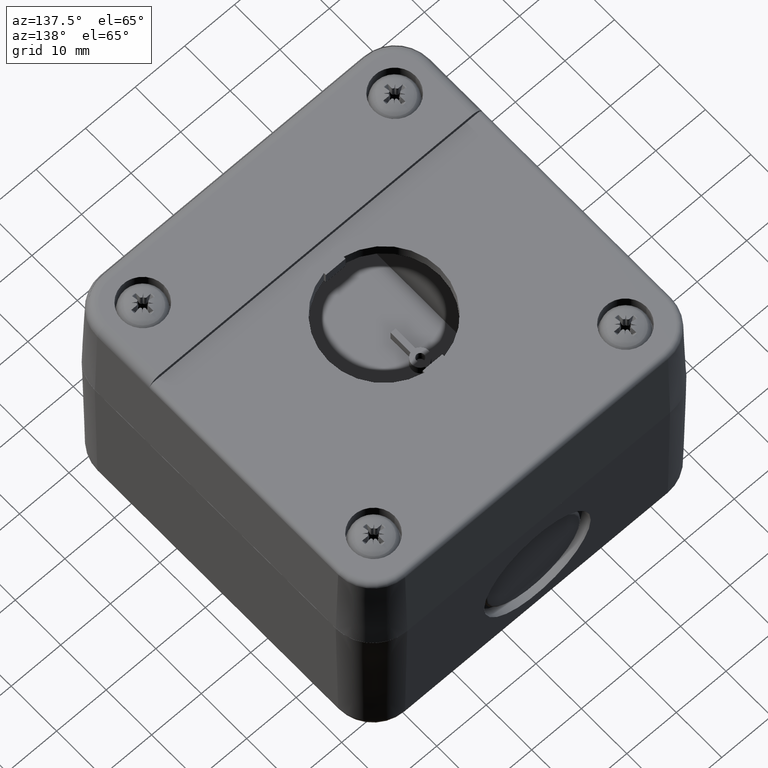
[diagram: clean part render]
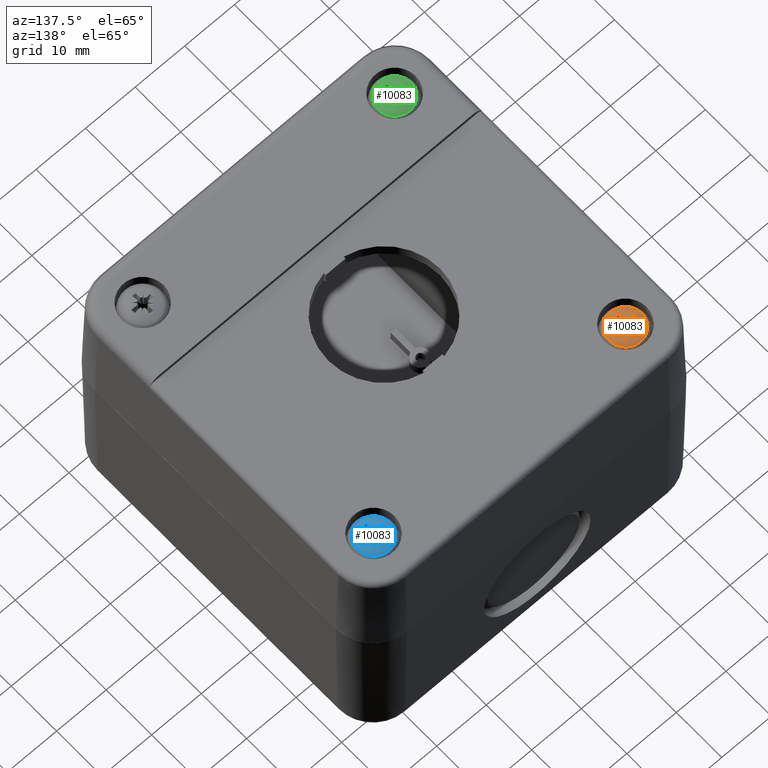
[diagram: same view with three faces highlighted in distinct colors, each labeled with its STEP entity id]
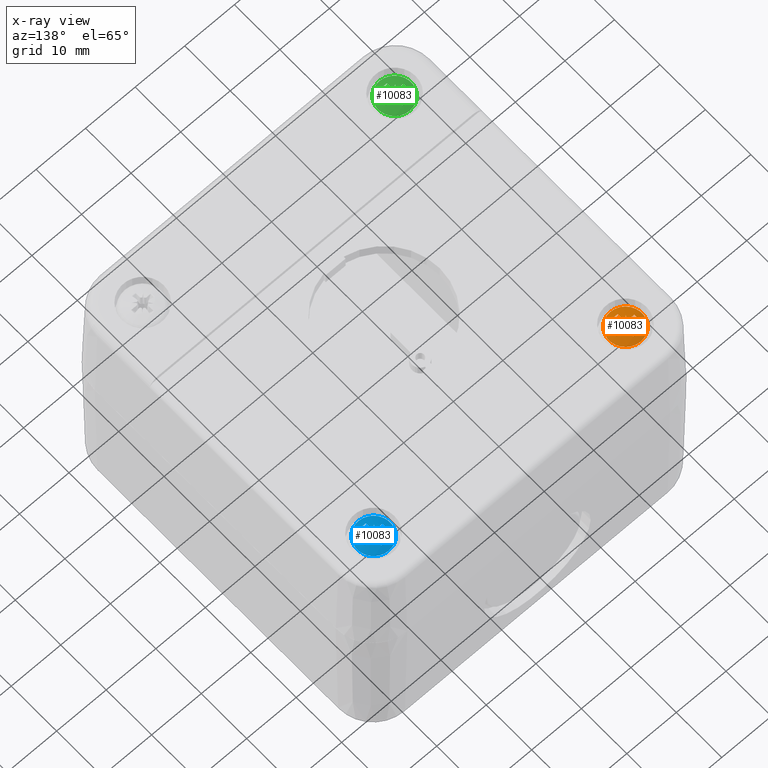
[diagram: x-ray of the same camera — body ghosted, the three highlighted faces saturated]
A machine part, auxiliary view with three faces highlighted in distinct colors.
The next image is the same camera in x-ray (body ghosted, the three faces saturated) — at least one of them is partly hidden behind the body in this view.
Their STEP definitions:

[orange] entity #10083 — the highlighted spherical surface has radius 6.5 mm.
#9370=CARTESIAN_POINT('',(-2.740264472333807,2.097928980903244,-0.381898155116653));
#9371=VERTEX_POINT('',#9370);
#9399=CARTESIAN_POINT('',(-2.740264472333807,2.097928980903246,0.381898155116641));
#9400=VERTEX_POINT('',#9399);
#9414=CARTESIAN_POINT('',(-2.740264472333807,-4.964762E-033,0.0));
#9415=DIRECTION('',(-1.0,0.0,0.0));
#9416=DIRECTION('',(0.0,1.0,0.0));
#9417=AXIS2_PLACEMENT_3D('',#9414,#9415,#9416);
#9418=CIRCLE('',#9417,2.132405263967247);
#9419=EDGE_CURVE('',#9400,#9371,#9418,.T.);
#9475=CARTESIAN_POINT('',(-2.740264472333807,-0.381898155116649,-2.097928980903244));
#9476=VERTEX_POINT('',#9475);
#9504=CARTESIAN_POINT('',(-2.740264472333807,0.381898155116649,-2.097928980903244));
#9505=VERTEX_POINT('',#9504);
#9519=CARTESIAN_POINT('',(-2.740264472333807,-4.964762E-033,0.0));
#9520=DIRECTION('',(-1.0,0.0,0.0));
#9521=DIRECTION('',(0.0,0.0,-1.0));
#9522=AXIS2_PLACEMENT_3D('',#9519,#9520,#9521);
#9523=CIRCLE('',#9522,2.132405263967247);
#9524=EDGE_CURVE('',#9505,#9476,#9523,.T.);
#9580=CARTESIAN_POINT('',(-2.740264472333807,-2.097928980903244,0.381898155116654));
#9581=VERTEX_POINT('',#9580);
#9609=CARTESIAN_POINT('',(-2.740264472333807,-2.097928980903244,-0.381898155116654));
#9610=VERTEX_POINT('',#9609);
#9624=CARTESIAN_POINT('',(-2.740264472333807,-4.964762E-033,0.0));
#9625=DIRECTION('',(-1.0,0.0,0.0));
#9626=DIRECTION('',(0.0,-1.0,0.0));
#9627=AXIS2_PLACEMENT_3D('',#9624,#9625,#9626);
#9628=CIRCLE('',#9627,2.132405263967247);
#9629=EDGE_CURVE('',#9610,#9581,#9628,.T.);
#9685=CARTESIAN_POINT('',(-2.740264472333807,0.381898155116649,2.097928980903244));
#9686=VERTEX_POINT('',#9685);
#9714=CARTESIAN_POINT('',(-2.740264472333807,-0.381898155116649,2.097928980903244));
#9715=VERTEX_POINT('',#9714);
#9729=CARTESIAN_POINT('',(-2.740264472333807,-4.964762E-033,0.0));
#9730=DIRECTION('',(-1.0,0.0,0.0));
#9731=DIRECTION('',(0.0,0.0,1.0));
#9732=AXIS2_PLACEMENT_3D('',#9729,#9730,#9731);
#9733=CIRCLE('',#9732,2.132405263967247);
#9734=EDGE_CURVE('',#9715,#9686,#9733,.T.);
#9790=CARTESIAN_POINT('',(-2.183742636930273,3.327434171328859,0.0));
#9791=VERTEX_POINT('',#9790);
#9792=CARTESIAN_POINT('',(-2.183742636930273,-6.405770E-033,0.0));
#9793=DIRECTION('',(1.0,0.0,0.0));
#9794=DIRECTION('',(0.0,-1.0,0.0));
#9795=AXIS2_PLACEMENT_3D('',#9792,#9793,#9794);
#9796=CIRCLE('',#9795,3.327434171328859);
#9797=EDGE_CURVE('',#9791,#9791,#9796,.T.);
#9813=CARTESIAN_POINT('',(3.400000000000001,2.905822E-033,0.0));
#9814=DIRECTION('',(0.0,0.0,1.0));
#9815=DIRECTION('',(1.0,0.0,0.0));
#9816=AXIS2_PLACEMENT_3D('',#9813,#9814,#9815);
#9817=SPHERICAL_SURFACE('',#9816,6.500000000000000);
#9818=CARTESIAN_POINT('',(-3.010679468079118,1.037261204626115,0.277989120158355));
#9819=VERTEX_POINT('',#9818);
#9820=CARTESIAN_POINT('',(3.364498488616870,0.048518764895126,-0.402873045988828));
#9821=DIRECTION('',(-0.087155742747658,0.119112928629935,-0.989048020441527));
#9822=DIRECTION('',(0.0,-0.992826023202183,-0.119567920666614));
#9823=AXIS2_PLACEMENT_3D('',#9820,#9821,#9822);
#9824=CIRCLE('',#9823,6.487224281690764);
#9825=EDGE_CURVE('',#9819,#9400,#9824,.T.);
#9826=ORIENTED_EDGE('',*,*,#9825,.F.);
#9827=CARTESIAN_POINT('',(-3.035815849595412,0.698160204518281,0.585531108426812));
#9828=VERTEX_POINT('',#9827);
#9829=CARTESIAN_POINT('',(-3.035815849593986,0.698160204522933,0.585531108426644));
#9830=CARTESIAN_POINT('',(-3.041048285518261,0.697706071094421,0.528560717466994));
#9831=CARTESIAN_POINT('',(-3.043961277870817,0.714742388245253,0.466989271457158));
#9832=CARTESIAN_POINT('',(-3.043452567975444,0.747144922975328,0.416765483602997));
#9833=CARTESIAN_POINT('',(-3.042928212863193,0.780543987727433,0.364997078550407));
#9834=CARTESIAN_POINT('',(-3.039219090583303,0.827318053658603,0.325394350588753));
#9835=CARTESIAN_POINT('',(-3.032533402503185,0.884247371927329,0.301032574517108));
#9836=CARTESIAN_POINT('',(-3.026743136403848,0.933552080385095,0.279933599450236));
#9837=CARTESIAN_POINT('',(-3.019255062838840,0.985721648384721,0.272537802283004));
#9838=CARTESIAN_POINT('',(-3.010679468079118,1.037261204626115,0.277989120158355));
#9839=B_SPLINE_CURVE_WITH_KNOTS('',3,(#9829,#9830,#9831,#9832,#9833,#9834,#9835,#9836,#9837,#9838),.UNSPECIFIED.,.F.,.U.,(4,3,3,4),(0.022629439956889,0.039685525400216,0.057266165522495,0.072492210064927),.UNSPECIFIED.);
#9840=EDGE_CURVE('',#9828,#9819,#9839,.T.);
#9841=ORIENTED_EDGE('',*,*,#9840,.F.);
#9842=CARTESIAN_POINT('',(-2.889326122708654,1.160684479566799,1.160684479566806));
#9843=VERTEX_POINT('',#9842);
#9844=CARTESIAN_POINT('',(3.230858224469190,-0.726027664307542,0.626933561900198));
#9845=DIRECTION('',(0.173648177666930,0.745371038273256,-0.643636796412699));
#9846=DIRECTION('',(0.0,-0.653565931466343,-0.756869587991572));
#9847=AXIS2_PLACEMENT_3D('',#9844,#9845,#9846);
#9848=CIRCLE('',#9847,6.426603239612161);
#9849=EDGE_CURVE('',#9828,#9843,#9848,.T.);
#9850=ORIENTED_EDGE('',*,*,#9849,.T.);
#9851=CARTESIAN_POINT('',(-3.035815851448311,0.585531098263068,0.698160201472788));
#9852=VERTEX_POINT('',#9851);
#9853=CARTESIAN_POINT('',(3.230858224469189,0.626933561900205,-0.726027664307540));
#9854=DIRECTION('',(0.173648177666930,-0.643636796412705,0.745371038273251));
#9855=DIRECTION('',(0.0,0.756869587991567,0.653565931466348));
#9856=AXIS2_PLACEMENT_3D('',#9853,#9854,#9855);
#9857=CIRCLE('',#9856,6.426603239612163);
#9858=EDGE_CURVE('',#9843,#9852,#9857,.T.);
#9859=ORIENTED_EDGE('',*,*,#9858,.T.);
#9860=CARTESIAN_POINT('',(-3.010679468079118,0.277989120158362,1.037261204626108));
#9861=VERTEX_POINT('',#9860);
#9862=CARTESIAN_POINT('',(-3.010679468079118,0.277989120158362,1.037261204626108));
#9863=CARTESIAN_POINT('',(-3.022007619513351,0.270788062256447,0.969178708389473));
#9864=CARTESIAN_POINT('',(-3.032570623285665,0.289734688212426,0.890579692116912));
#9865=CARTESIAN_POINT('',(-3.038088171152974,0.329625598365260,0.832086332878081));
#9866=CARTESIAN_POINT('',(-3.043024119821022,0.365311647597867,0.779758700102090));
#9867=CARTESIAN_POINT('',(-3.044737404278167,0.419395741705454,0.737382176698533));
#9868=CARTESIAN_POINT('',(-3.042556473023540,0.480946385549282,0.715651218212857));
#9869=CARTESIAN_POINT('',(-3.041337828882706,0.515339185104863,0.703508558889182));
#9870=CARTESIAN_POINT('',(-3.039108349183298,0.549682604545028,0.697874443176943));
#9871=CARTESIAN_POINT('',(-3.035815850537316,0.585531098155737,0.698160204441053));
#9872=B_SPLINE_CURVE_WITH_KNOTS('',3,(#9862,#9863,#9864,#9865,#9866,#9867,#9868,#9869,#9870,#9871),.UNSPECIFIED.,.F.,.U.,(4,3,3,4),(0.0,0.020817943436544,0.039441488288037,0.049847810709570),.UNSPECIFIED.);
#9873=EDGE_CURVE('',#9861,#9852,#9872,.T.);
#9874=ORIENTED_EDGE('',*,*,#9873,.F.);
#9875=CARTESIAN_POINT('',(3.364498488616871,-0.402873045988821,0.048518764895125));
#9876=DIRECTION('',(-0.087155742747658,-0.989048020441528,0.119112928629935));
#9877=DIRECTION('',(0.0,0.119567920666614,0.992826023202183));
#9878=AXIS2_PLACEMENT_3D('',#9875,#9876,#9877);
#9879=CIRCLE('',#9878,6.487224281690764);
#9880=EDGE_CURVE('',#9686,#9861,#9879,.T.);
#9881=ORIENTED_EDGE('',*,*,#9880,.F.);
#9882=ORIENTED_EDGE('',*,*,#9734,.F.);
#9883=CARTESIAN_POINT('',(-3.010679468079118,-0.277989120158362,1.037261204626108));
#9884=VERTEX_POINT('',#9883);
#9885=CARTESIAN_POINT('',(3.364498488616871,0.402873045988821,0.048518764895125));
#9886=DIRECTION('',(-0.087155742747658,0.989048020441528,0.119112928629935));
#9887=DIRECTION('',(0.0,0.119567920666614,-0.992826023202183));
#9888=AXIS2_PLACEMENT_3D('',#9885,#9886,#9887);
#9889=CIRCLE('',#9888,6.487224281690764);
#9890=EDGE_CURVE('',#9884,#9715,#9889,.T.);
#9891=ORIENTED_EDGE('',*,*,#9890,.F.);
#9892=CARTESIAN_POINT('',(-3.035815849594092,-0.585531108434057,0.698160204520450));
#9893=VERTEX_POINT('',#9892);
#9894=CARTESIAN_POINT('',(-3.035815849593314,-0.585531108433966,0.698160204522984));
#9895=CARTESIAN_POINT('',(-3.041020000111173,-0.528868686974056,0.697708526039322));
#9896=CARTESIAN_POINT('',(-3.043937330697067,-0.467531693559307,0.714581207607330));
#9897=CARTESIAN_POINT('',(-3.043459287925275,-0.417448635629941,0.746705458303476));
#9898=CARTESIAN_POINT('',(-3.042962619367630,-0.365414211908990,0.780081353098054));
#9899=CARTESIAN_POINT('',(-3.039257548525046,-0.325593896696212,0.826955961902831));
#9900=CARTESIAN_POINT('',(-3.032555218392210,-0.301112165263332,0.884061551174787));
#9901=CARTESIAN_POINT('',(-3.026762777964892,-0.279954005627508,0.933414644407852));
#9902=CARTESIAN_POINT('',(-3.019265837620008,-0.272530952990475,0.985656891658732));
#9903=CARTESIAN_POINT('',(-3.010679468079118,-0.277989120158362,1.037261204626108));
#9904=B_SPLINE_CURVE_WITH_KNOTS('',3,(#9894,#9895,#9896,#9897,#9898,#9899,#9900,#9901,#9902,#9903),.UNSPECIFIED.,.F.,.U.,(4,3,3,4),(0.022628689883696,0.039607089451594,0.057247011488016,0.072492186749959),.UNSPECIFIED.);
#9905=EDGE_CURVE('',#9893,#9884,#9904,.T.);
#9906=ORIENTED_EDGE('',*,*,#9905,.F.);
#9907=CARTESIAN_POINT('',(-2.889326122708666,-1.160684479566765,1.160684479566779));
#9908=VERTEX_POINT('',#9907);
#9909=CARTESIAN_POINT('',(3.230858224469189,-0.626933561900205,-0.726027664307540));
#9910=DIRECTION('',(0.173648177666930,0.643636796412705,0.745371038273251));
#9911=DIRECTION('',(0.0,0.756869587991567,-0.653565931466348));
#9912=AXIS2_PLACEMENT_3D('',#9909,#9910,#9911);
#9913=CIRCLE('',#9912,6.426603239612163);
#9914=EDGE_CURVE('',#9893,#9908,#9913,.T.);
#9915=ORIENTED_EDGE('',*,*,#9914,.T.);
#9916=CARTESIAN_POINT('',(-3.035815851448307,-0.698160201472795,0.585531098263103));
#9917=VERTEX_POINT('',#9916);
#9918=CARTESIAN_POINT('',(3.230858224469187,0.726027664307552,0.626933561900211));
#9919=DIRECTION('',(0.173648177666930,-0.745371038273254,-0.643636796412702));
#9920=DIRECTION('',(0.0,-0.653565931466345,0.756869587991570));
#9921=AXIS2_PLACEMENT_3D('',#9918,#9919,#9920);
#9922=CIRCLE('',#9921,6.426603239612160);
#9923=EDGE_CURVE('',#9908,#9917,#9922,.T.);
#9924=ORIENTED_EDGE('',*,*,#9923,.T.);
#9925=CARTESIAN_POINT('',(-3.010679468079117,-1.037261204626115,0.277989120158368));
#9926=VERTEX_POINT('',#9925);
#9927=CARTESIAN_POINT('',(-3.010679468079117,-1.037261204626116,0.277989120158355));
#9928=CARTESIAN_POINT('',(-3.022007619513351,-0.969178708389474,0.270788062256439));
#9929=CARTESIAN_POINT('',(-3.032570623285664,-0.890579692116914,0.289734688212420));
#9930=CARTESIAN_POINT('',(-3.038088171152974,-0.832086332878082,0.329625598365256));
#9931=CARTESIAN_POINT('',(-3.043024119821021,-0.779758700102097,0.365311647597862));
#9932=CARTESIAN_POINT('',(-3.044737404278166,-0.737382176698543,0.419395741705444));
#9933=CARTESIAN_POINT('',(-3.042556473023540,-0.715651218212867,0.480946385549266));
#9934=CARTESIAN_POINT('',(-3.041337828882706,-0.703508558889185,0.515339185104863));
#9935=CARTESIAN_POINT('',(-3.039108349183295,-0.697874443176945,0.549682604545045));
#9936=CARTESIAN_POINT('',(-3.035815850537312,-0.698160204441060,0.585531098155772));
#9937=B_SPLINE_CURVE_WITH_KNOTS('',3,(#9927,#9928,#9929,#9930,#9931,#9932,#9933,#9934,#9935,#9936),.UNSPECIFIED.,.F.,.U.,(4,3,3,4),(0.0,0.020817943436545,0.039441488288037,0.049847810709574),.UNSPECIFIED.);
#9938=EDGE_CURVE('',#9926,#9917,#9937,.T.);
#9939=ORIENTED_EDGE('',*,*,#9938,.F.);
#9940=CARTESIAN_POINT('',(3.364498488616871,-0.048518764895124,-0.402873045988815));
#9941=DIRECTION('',(-0.087155742747658,-0.119112928629935,-0.989048020441527));
#9942=DIRECTION('',(0.0,-0.992826023202183,0.119567920666614));
#9943=AXIS2_PLACEMENT_3D('',#9940,#9941,#9942);
#9944=CIRCLE('',#9943,6.487224281690765);
#9945=EDGE_CURVE('',#9581,#9926,#9944,.T.);
#9946=ORIENTED_EDGE('',*,*,#9945,.F.);
#9947=ORIENTED_EDGE('',*,*,#9629,.F.);
#9948=CARTESIAN_POINT('',(-3.010679468079117,-1.037261204626115,-0.277989120158368));
#9949=VERTEX_POINT('',#9948);
#9950=CARTESIAN_POINT('',(3.364498488616871,-0.048518764895124,0.402873045988815));
#9951=DIRECTION('',(-0.087155742747658,-0.119112928629935,0.989048020441527));
#9952=DIRECTION('',(0.0,0.992826023202183,0.119567920666614));
#9953=AXIS2_PLACEMENT_3D('',#9950,#9951,#9952);
#9954=CIRCLE('',#9953,6.487224281690765);
#9955=EDGE_CURVE('',#9949,#9610,#9954,.T.);
#9956=ORIENTED_EDGE('',*,*,#9955,.F.);
#9957=CARTESIAN_POINT('',(-3.035815849595412,-0.698160204518281,-0.585531108426827));
#9958=VERTEX_POINT('',#9957);
#9959=CARTESIAN_POINT('',(-3.035815849593984,-0.698160204522933,-0.585531108426659));
#9960=CARTESIAN_POINT('',(-3.041048285518225,-0.697706071094424,-0.528560717467378));
#9961=CARTESIAN_POINT('',(-3.043961277870781,-0.714742388245004,-0.466989271457977));
#9962=CARTESIAN_POINT('',(-3.043452567975453,-0.747144922974693,-0.416765483603994));
#9963=CARTESIAN_POINT('',(-3.042928212863242,-0.780543987726763,-0.364997078551025));
#9964=CARTESIAN_POINT('',(-3.039219090583361,-0.827318053658044,-0.325394350589086));
#9965=CARTESIAN_POINT('',(-3.032533402503224,-0.884247371926989,-0.301032574517266));
#9966=CARTESIAN_POINT('',(-3.026743136403883,-0.933552080384844,-0.279933599450286));
#9967=CARTESIAN_POINT('',(-3.019255062838859,-0.985721648384602,-0.272537802283005));
#9968=CARTESIAN_POINT('',(-3.010679468079117,-1.037261204626115,-0.277989120158368));
#9969=B_SPLINE_CURVE_WITH_KNOTS('',3,(#9959,#9960,#9961,#9962,#9963,#9964,#9965,#9966,#9967,#9968),.UNSPECIFIED.,.F.,.U.,(4,3,3,4),(0.022629439956888,0.039685525400103,0.057266165522459,0.072492210064926),.UNSPECIFIED.);
#9970=EDGE_CURVE('',#9958,#9949,#9969,.T.);
#9971=ORIENTED_EDGE('',*,*,#9970,.F.);
#9972=CARTESIAN_POINT('',(-2.889326122708658,-1.160684479566787,-1.160684479566796));
#9973=VERTEX_POINT('',#9972);
#9974=CARTESIAN_POINT('',(3.230858224469187,0.726027664307549,-0.626933561900214));
#9975=DIRECTION('',(0.173648177666930,-0.745371038273251,0.643636796412705));
#9976=DIRECTION('',(0.0,0.653565931466348,0.756869587991567));
#9977=AXIS2_PLACEMENT_3D('',#9974,#9975,#9976);
#9978=CIRCLE('',#9977,6.426603239612161);
#9979=EDGE_CURVE('',#9958,#9973,#9978,.T.);
#9980=ORIENTED_EDGE('',*,*,#9979,.T.);
#9981=CARTESIAN_POINT('',(-3.035815851448311,-0.585531098263068,-0.698160201472788));
#9982=VERTEX_POINT('',#9981);
#9983=CARTESIAN_POINT('',(3.230858224469189,-0.626933561900205,0.726027664307540));
#9984=DIRECTION('',(0.173648177666930,0.643636796412705,-0.745371038273251));
#9985=DIRECTION('',(0.0,-0.756869587991567,-0.653565931466348));
#9986=AXIS2_PLACEMENT_3D('',#9983,#9984,#9985);
#9987=CIRCLE('',#9986,6.426603239612163);
#9988=EDGE_CURVE('',#9973,#9982,#9987,.T.);
#9989=ORIENTED_EDGE('',*,*,#9988,.T.);
#9990=CARTESIAN_POINT('',(-3.010679468079118,-0.277989120158362,-1.037261204626108));
#9991=VERTEX_POINT('',#9990);
#9992=CARTESIAN_POINT('',(-3.010679468079118,-0.277989120158362,-1.037261204626108));
#9993=CARTESIAN_POINT('',(-3.022007619513351,-0.270788062256447,-0.969178708389472));
#9994=CARTESIAN_POINT('',(-3.032570623285665,-0.289734688212427,-0.890579692116911));
#9995=CARTESIAN_POINT('',(-3.038088171152974,-0.329625598365261,-0.832086332878080));
#9996=CARTESIAN_POINT('',(-3.043024119821022,-0.365311647597867,-0.779758700102092));
#9997=CARTESIAN_POINT('',(-3.044737404278167,-0.419395741705450,-0.737382176698537));
#9998=CARTESIAN_POINT('',(-3.042556473023541,-0.480946385549274,-0.715651218212860));
#9999=CARTESIAN_POINT('',(-3.041337828882706,-0.515339185104858,-0.703508558889183));
#10000=CARTESIAN_POINT('',(-3.039108349183298,-0.549682604545025,-0.697874443176943));
#10001=CARTESIAN_POINT('',(-3.035815850537316,-0.585531098155737,-0.698160204441053));
#10002=B_SPLINE_CURVE_WITH_KNOTS('',3,(#9992,#9993,#9994,#9995,#9996,#9997,#9998,#9999,#10000,#10001),.UNSPECIFIED.,.F.,.U.,(4,3,3,4),(0.0,0.020817943436545,0.039441488288037,0.049847810709570),.UNSPECIFIED.);
#10003=EDGE_CURVE('',#9991,#9982,#10002,.T.);
#10004=ORIENTED_EDGE('',*,*,#10003,.F.);
#10005=CARTESIAN_POINT('',(3.364498488616871,0.402873045988821,-0.048518764895125));
#10006=DIRECTION('',(-0.087155742747658,0.989048020441528,-0.119112928629935));
#10007=DIRECTION('',(0.0,-0.119567920666614,-0.992826023202183));
#10008=AXIS2_PLACEMENT_3D('',#10005,#10006,#10007);
#10009=CIRCLE('',#10008,6.487224281690764);
#10010=EDGE_CURVE('',#9476,#9991,#10009,.T.);
#10011=ORIENTED_EDGE('',*,*,#10010,.F.);
#10012=ORIENTED_EDGE('',*,*,#9524,.F.);
#10013=CARTESIAN_POINT('',(-3.010679468079118,0.277989120158362,-1.037261204626108));
#10014=VERTEX_POINT('',#10013);
#10015=CARTESIAN_POINT('',(3.364498488616871,-0.402873045988821,-0.048518764895125));
#10016=DIRECTION('',(-0.087155742747658,-0.989048020441528,-0.119112928629935));
#10017=DIRECTION('',(0.0,-0.119567920666614,0.992826023202183));
#10018=AXIS2_PLACEMENT_3D('',#10015,#10016,#10017);
#10019=CIRCLE('',#10018,6.487224281690764);
#10020=EDGE_CURVE('',#10014,#9505,#10019,.T.);
#10021=ORIENTED_EDGE('',*,*,#10020,.F.);
#10022=CARTESIAN_POINT('',(-3.035815849594092,0.585531108434057,-0.698160204520450));
#10023=VERTEX_POINT('',#10022);
#10024=CARTESIAN_POINT('',(-3.035815849593314,0.585531108433966,-0.698160204522984));
#10025=CARTESIAN_POINT('',(-3.041020000111195,0.528868686973814,-0.697708526039320));
#10026=CARTESIAN_POINT('',(-3.043937330697089,0.467531693558786,-0.714581207607489));
#10027=CARTESIAN_POINT('',(-3.043459287925268,0.417448635629303,-0.746705458303885));
#10028=CARTESIAN_POINT('',(-3.042962619367598,0.365414211908607,-0.780081353098481));
#10029=CARTESIAN_POINT('',(-3.039257548525010,0.325593896696021,-0.826955961903173));
#10030=CARTESIAN_POINT('',(-3.032555218392188,0.301112165263252,-0.884061551174973));
#10031=CARTESIAN_POINT('',(-3.026762777964872,0.279954005627488,-0.933414644407990));
#10032=CARTESIAN_POINT('',(-3.019265837619997,0.272530952990482,-0.985656891658797));
#10033=CARTESIAN_POINT('',(-3.010679468079118,0.277989120158362,-1.037261204626108));
#10034=B_SPLINE_CURVE_WITH_KNOTS('',3,(#10024,#10025,#10026,#10027,#10028,#10029,#10030,#10031,#10032,#10033),.UNSPECIFIED.,.F.,.U.,(4,3,3,4),(0.022628689883696,0.039607089451666,0.057247011488035,0.072492186749959),.UNSPECIFIED.);
#10035=EDGE_CURVE('',#10023,#10014,#10034,.T.);
#10036=ORIENTED_EDGE('',*,*,#10035,.F.);
#10037=CARTESIAN_POINT('',(-2.889326122708656,1.160684479566794,-1.160684479566803));
#10038=VERTEX_POINT('',#10037);
#10039=CARTESIAN_POINT('',(3.230858224469189,0.626933561900205,0.726027664307540));
#10040=DIRECTION('',(0.173648177666930,-0.643636796412705,-0.745371038273251));
#10041=DIRECTION('',(0.0,-0.756869587991567,0.653565931466348));
#10042=AXIS2_PLACEMENT_3D('',#10039,#10040,#10041);
#10043=CIRCLE('',#10042,6.426603239612163);
#10044=EDGE_CURVE('',#10023,#10038,#10043,.T.);
#10045=ORIENTED_EDGE('',*,*,#10044,.T.);
#10046=CARTESIAN_POINT('',(-3.035815851448307,0.698160201472795,-0.585531098263094));
#10047=VERTEX_POINT('',#10046);
#10048=CARTESIAN_POINT('',(3.230858224469188,-0.726027664307548,-0.626933561900213));
#10049=DIRECTION('',(0.173648177666930,0.745371038273251,0.643636796412705));
#10050=DIRECTION('',(0.0,0.653565931466348,-0.756869587991567));
#10051=AXIS2_PLACEMENT_3D('',#10048,#10049,#10050);
#10052=CIRCLE('',#10051,6.426603239612161);
#10053=EDGE_CURVE('',#10038,#10047,#10052,.T.);
#10054=ORIENTED_EDGE('',*,*,#10053,.T.);
#10055=CARTESIAN_POINT('',(-3.010679468079118,1.037261204626115,-0.277989120158368));
#10056=VERTEX_POINT('',#10055);
#10057=CARTESIAN_POINT('',(-3.010679468079117,1.037261204626116,-0.277989120158355));
#10058=CARTESIAN_POINT('',(-3.022007619513351,0.969178708389474,-0.270788062256439));
#10059=CARTESIAN_POINT('',(-3.032570623285664,0.890579692116912,-0.289734688212421));
#10060=CARTESIAN_POINT('',(-3.038088171152974,0.832086332878080,-0.329625598365258));
#10061=CARTESIAN_POINT('',(-3.043024119821020,0.779758700102098,-0.365311647597862));
#10062=CARTESIAN_POINT('',(-3.044737404278167,0.737382176698546,-0.419395741705441));
#10063=CARTESIAN_POINT('',(-3.042556473023541,0.715651218212870,-0.480946385549260));
#10064=CARTESIAN_POINT('',(-3.041337828882706,0.703508558889187,-0.515339185104857));
#10065=CARTESIAN_POINT('',(-3.039108349183297,0.697874443176946,-0.549682604545037));
#10066=CARTESIAN_POINT('',(-3.035815850537313,0.698160204441060,-0.585531098155763));
#10067=B_SPLINE_CURVE_WITH_KNOTS('',3,(#10057,#10058,#10059,#10060,#10061,#10062,#10063,#10064,#10065,#10066),.UNSPECIFIED.,.F.,.U.,(4,3,3,4),(0.0,0.020817943436546,0.039441488288036,0.049847810709573),.UNSPECIFIED.);
#10068=EDGE_CURVE('',#10056,#10047,#10067,.T.);
#10069=ORIENTED_EDGE('',*,*,#10068,.F.);
#10070=CARTESIAN_POINT('',(3.364498488616871,0.048518764895124,0.402873045988815));
#10071=DIRECTION('',(-0.087155742747658,0.119112928629934,0.989048020441528));
#10072=DIRECTION('',(0.0,0.992826023202183,-0.119567920666613));
#10073=AXIS2_PLACEMENT_3D('',#10070,#10071,#10072);
#10074=CIRCLE('',#10073,6.487224281690766);
#10075=EDGE_CURVE('',#9371,#10056,#10074,.T.);
#10076=ORIENTED_EDGE('',*,*,#10075,.F.);
#10077=ORIENTED_EDGE('',*,*,#9419,.F.);
#10078=EDGE_LOOP('',(#9826,#9841,#9850,#9859,#9874,#9881,#9882,#9891,#9906,#9915,#9924,#9939,#9946,#9947,#9956,#9971,#9980,#9989,#10004,#10011,#10012,#10021,#10036,#10045,#10054,#10069,#10076,#10077));
#10079=FACE_OUTER_BOUND('',#10078,.T.);
#10080=ORIENTED_EDGE('',*,*,#9797,.F.);
#10081=EDGE_LOOP('',(#10080));
#10082=FACE_BOUND('',#10081,.T.);
#10083=ADVANCED_FACE('',(#10079,#10082),#9817,.T.);

[blue] entity #10083 — the highlighted spherical surface has radius 6.5 mm.
#9370=CARTESIAN_POINT('',(-2.740264472333807,2.097928980903244,-0.381898155116653));
#9371=VERTEX_POINT('',#9370);
#9399=CARTESIAN_POINT('',(-2.740264472333807,2.097928980903246,0.381898155116641));
#9400=VERTEX_POINT('',#9399);
#9414=CARTESIAN_POINT('',(-2.740264472333807,-4.964762E-033,0.0));
#9415=DIRECTION('',(-1.0,0.0,0.0));
#9416=DIRECTION('',(0.0,1.0,0.0));
#9417=AXIS2_PLACEMENT_3D('',#9414,#9415,#9416);
#9418=CIRCLE('',#9417,2.132405263967247);
#9419=EDGE_CURVE('',#9400,#9371,#9418,.T.);
#9475=CARTESIAN_POINT('',(-2.740264472333807,-0.381898155116649,-2.097928980903244));
#9476=VERTEX_POINT('',#9475);
#9504=CARTESIAN_POINT('',(-2.740264472333807,0.381898155116649,-2.097928980903244));
#9505=VERTEX_POINT('',#9504);
#9519=CARTESIAN_POINT('',(-2.740264472333807,-4.964762E-033,0.0));
#9520=DIRECTION('',(-1.0,0.0,0.0));
#9521=DIRECTION('',(0.0,0.0,-1.0));
#9522=AXIS2_PLACEMENT_3D('',#9519,#9520,#9521);
#9523=CIRCLE('',#9522,2.132405263967247);
#9524=EDGE_CURVE('',#9505,#9476,#9523,.T.);
#9580=CARTESIAN_POINT('',(-2.740264472333807,-2.097928980903244,0.381898155116654));
#9581=VERTEX_POINT('',#9580);
#9609=CARTESIAN_POINT('',(-2.740264472333807,-2.097928980903244,-0.381898155116654));
#9610=VERTEX_POINT('',#9609);
#9624=CARTESIAN_POINT('',(-2.740264472333807,-4.964762E-033,0.0));
#9625=DIRECTION('',(-1.0,0.0,0.0));
#9626=DIRECTION('',(0.0,-1.0,0.0));
#9627=AXIS2_PLACEMENT_3D('',#9624,#9625,#9626);
#9628=CIRCLE('',#9627,2.132405263967247);
#9629=EDGE_CURVE('',#9610,#9581,#9628,.T.);
#9685=CARTESIAN_POINT('',(-2.740264472333807,0.381898155116649,2.097928980903244));
#9686=VERTEX_POINT('',#9685);
#9714=CARTESIAN_POINT('',(-2.740264472333807,-0.381898155116649,2.097928980903244));
#9715=VERTEX_POINT('',#9714);
#9729=CARTESIAN_POINT('',(-2.740264472333807,-4.964762E-033,0.0));
#9730=DIRECTION('',(-1.0,0.0,0.0));
#9731=DIRECTION('',(0.0,0.0,1.0));
#9732=AXIS2_PLACEMENT_3D('',#9729,#9730,#9731);
#9733=CIRCLE('',#9732,2.132405263967247);
#9734=EDGE_CURVE('',#9715,#9686,#9733,.T.);
#9790=CARTESIAN_POINT('',(-2.183742636930273,3.327434171328859,0.0));
#9791=VERTEX_POINT('',#9790);
#9792=CARTESIAN_POINT('',(-2.183742636930273,-6.405770E-033,0.0));
#9793=DIRECTION('',(1.0,0.0,0.0));
#9794=DIRECTION('',(0.0,-1.0,0.0));
#9795=AXIS2_PLACEMENT_3D('',#9792,#9793,#9794);
#9796=CIRCLE('',#9795,3.327434171328859);
#9797=EDGE_CURVE('',#9791,#9791,#9796,.T.);
#9813=CARTESIAN_POINT('',(3.400000000000001,2.905822E-033,0.0));
#9814=DIRECTION('',(0.0,0.0,1.0));
#9815=DIRECTION('',(1.0,0.0,0.0));
#9816=AXIS2_PLACEMENT_3D('',#9813,#9814,#9815);
#9817=SPHERICAL_SURFACE('',#9816,6.500000000000000);
#9818=CARTESIAN_POINT('',(-3.010679468079118,1.037261204626115,0.277989120158355));
#9819=VERTEX_POINT('',#9818);
#9820=CARTESIAN_POINT('',(3.364498488616870,0.048518764895126,-0.402873045988828));
#9821=DIRECTION('',(-0.087155742747658,0.119112928629935,-0.989048020441527));
#9822=DIRECTION('',(0.0,-0.992826023202183,-0.119567920666614));
#9823=AXIS2_PLACEMENT_3D('',#9820,#9821,#9822);
#9824=CIRCLE('',#9823,6.487224281690764);
#9825=EDGE_CURVE('',#9819,#9400,#9824,.T.);
#9826=ORIENTED_EDGE('',*,*,#9825,.F.);
#9827=CARTESIAN_POINT('',(-3.035815849595412,0.698160204518281,0.585531108426812));
#9828=VERTEX_POINT('',#9827);
#9829=CARTESIAN_POINT('',(-3.035815849593986,0.698160204522933,0.585531108426644));
#9830=CARTESIAN_POINT('',(-3.041048285518261,0.697706071094421,0.528560717466994));
#9831=CARTESIAN_POINT('',(-3.043961277870817,0.714742388245253,0.466989271457158));
#9832=CARTESIAN_POINT('',(-3.043452567975444,0.747144922975328,0.416765483602997));
#9833=CARTESIAN_POINT('',(-3.042928212863193,0.780543987727433,0.364997078550407));
#9834=CARTESIAN_POINT('',(-3.039219090583303,0.827318053658603,0.325394350588753));
#9835=CARTESIAN_POINT('',(-3.032533402503185,0.884247371927329,0.301032574517108));
#9836=CARTESIAN_POINT('',(-3.026743136403848,0.933552080385095,0.279933599450236));
#9837=CARTESIAN_POINT('',(-3.019255062838840,0.985721648384721,0.272537802283004));
#9838=CARTESIAN_POINT('',(-3.010679468079118,1.037261204626115,0.277989120158355));
#9839=B_SPLINE_CURVE_WITH_KNOTS('',3,(#9829,#9830,#9831,#9832,#9833,#9834,#9835,#9836,#9837,#9838),.UNSPECIFIED.,.F.,.U.,(4,3,3,4),(0.022629439956889,0.039685525400216,0.057266165522495,0.072492210064927),.UNSPECIFIED.);
#9840=EDGE_CURVE('',#9828,#9819,#9839,.T.);
#9841=ORIENTED_EDGE('',*,*,#9840,.F.);
#9842=CARTESIAN_POINT('',(-2.889326122708654,1.160684479566799,1.160684479566806));
#9843=VERTEX_POINT('',#9842);
#9844=CARTESIAN_POINT('',(3.230858224469190,-0.726027664307542,0.626933561900198));
#9845=DIRECTION('',(0.173648177666930,0.745371038273256,-0.643636796412699));
#9846=DIRECTION('',(0.0,-0.653565931466343,-0.756869587991572));
#9847=AXIS2_PLACEMENT_3D('',#9844,#9845,#9846);
#9848=CIRCLE('',#9847,6.426603239612161);
#9849=EDGE_CURVE('',#9828,#9843,#9848,.T.);
#9850=ORIENTED_EDGE('',*,*,#9849,.T.);
#9851=CARTESIAN_POINT('',(-3.035815851448311,0.585531098263068,0.698160201472788));
#9852=VERTEX_POINT('',#9851);
#9853=CARTESIAN_POINT('',(3.230858224469189,0.626933561900205,-0.726027664307540));
#9854=DIRECTION('',(0.173648177666930,-0.643636796412705,0.745371038273251));
#9855=DIRECTION('',(0.0,0.756869587991567,0.653565931466348));
#9856=AXIS2_PLACEMENT_3D('',#9853,#9854,#9855);
#9857=CIRCLE('',#9856,6.426603239612163);
#9858=EDGE_CURVE('',#9843,#9852,#9857,.T.);
#9859=ORIENTED_EDGE('',*,*,#9858,.T.);
#9860=CARTESIAN_POINT('',(-3.010679468079118,0.277989120158362,1.037261204626108));
#9861=VERTEX_POINT('',#9860);
#9862=CARTESIAN_POINT('',(-3.010679468079118,0.277989120158362,1.037261204626108));
#9863=CARTESIAN_POINT('',(-3.022007619513351,0.270788062256447,0.969178708389473));
#9864=CARTESIAN_POINT('',(-3.032570623285665,0.289734688212426,0.890579692116912));
#9865=CARTESIAN_POINT('',(-3.038088171152974,0.329625598365260,0.832086332878081));
#9866=CARTESIAN_POINT('',(-3.043024119821022,0.365311647597867,0.779758700102090));
#9867=CARTESIAN_POINT('',(-3.044737404278167,0.419395741705454,0.737382176698533));
#9868=CARTESIAN_POINT('',(-3.042556473023540,0.480946385549282,0.715651218212857));
#9869=CARTESIAN_POINT('',(-3.041337828882706,0.515339185104863,0.703508558889182));
#9870=CARTESIAN_POINT('',(-3.039108349183298,0.549682604545028,0.697874443176943));
#9871=CARTESIAN_POINT('',(-3.035815850537316,0.585531098155737,0.698160204441053));
#9872=B_SPLINE_CURVE_WITH_KNOTS('',3,(#9862,#9863,#9864,#9865,#9866,#9867,#9868,#9869,#9870,#9871),.UNSPECIFIED.,.F.,.U.,(4,3,3,4),(0.0,0.020817943436544,0.039441488288037,0.049847810709570),.UNSPECIFIED.);
#9873=EDGE_CURVE('',#9861,#9852,#9872,.T.);
#9874=ORIENTED_EDGE('',*,*,#9873,.F.);
#9875=CARTESIAN_POINT('',(3.364498488616871,-0.402873045988821,0.048518764895125));
#9876=DIRECTION('',(-0.087155742747658,-0.989048020441528,0.119112928629935));
#9877=DIRECTION('',(0.0,0.119567920666614,0.992826023202183));
#9878=AXIS2_PLACEMENT_3D('',#9875,#9876,#9877);
#9879=CIRCLE('',#9878,6.487224281690764);
#9880=EDGE_CURVE('',#9686,#9861,#9879,.T.);
#9881=ORIENTED_EDGE('',*,*,#9880,.F.);
#9882=ORIENTED_EDGE('',*,*,#9734,.F.);
#9883=CARTESIAN_POINT('',(-3.010679468079118,-0.277989120158362,1.037261204626108));
#9884=VERTEX_POINT('',#9883);
#9885=CARTESIAN_POINT('',(3.364498488616871,0.402873045988821,0.048518764895125));
#9886=DIRECTION('',(-0.087155742747658,0.989048020441528,0.119112928629935));
#9887=DIRECTION('',(0.0,0.119567920666614,-0.992826023202183));
#9888=AXIS2_PLACEMENT_3D('',#9885,#9886,#9887);
#9889=CIRCLE('',#9888,6.487224281690764);
#9890=EDGE_CURVE('',#9884,#9715,#9889,.T.);
#9891=ORIENTED_EDGE('',*,*,#9890,.F.);
#9892=CARTESIAN_POINT('',(-3.035815849594092,-0.585531108434057,0.698160204520450));
#9893=VERTEX_POINT('',#9892);
#9894=CARTESIAN_POINT('',(-3.035815849593314,-0.585531108433966,0.698160204522984));
#9895=CARTESIAN_POINT('',(-3.041020000111173,-0.528868686974056,0.697708526039322));
#9896=CARTESIAN_POINT('',(-3.043937330697067,-0.467531693559307,0.714581207607330));
#9897=CARTESIAN_POINT('',(-3.043459287925275,-0.417448635629941,0.746705458303476));
#9898=CARTESIAN_POINT('',(-3.042962619367630,-0.365414211908990,0.780081353098054));
#9899=CARTESIAN_POINT('',(-3.039257548525046,-0.325593896696212,0.826955961902831));
#9900=CARTESIAN_POINT('',(-3.032555218392210,-0.301112165263332,0.884061551174787));
#9901=CARTESIAN_POINT('',(-3.026762777964892,-0.279954005627508,0.933414644407852));
#9902=CARTESIAN_POINT('',(-3.019265837620008,-0.272530952990475,0.985656891658732));
#9903=CARTESIAN_POINT('',(-3.010679468079118,-0.277989120158362,1.037261204626108));
#9904=B_SPLINE_CURVE_WITH_KNOTS('',3,(#9894,#9895,#9896,#9897,#9898,#9899,#9900,#9901,#9902,#9903),.UNSPECIFIED.,.F.,.U.,(4,3,3,4),(0.022628689883696,0.039607089451594,0.057247011488016,0.072492186749959),.UNSPECIFIED.);
#9905=EDGE_CURVE('',#9893,#9884,#9904,.T.);
#9906=ORIENTED_EDGE('',*,*,#9905,.F.);
#9907=CARTESIAN_POINT('',(-2.889326122708666,-1.160684479566765,1.160684479566779));
#9908=VERTEX_POINT('',#9907);
#9909=CARTESIAN_POINT('',(3.230858224469189,-0.626933561900205,-0.726027664307540));
#9910=DIRECTION('',(0.173648177666930,0.643636796412705,0.745371038273251));
#9911=DIRECTION('',(0.0,0.756869587991567,-0.653565931466348));
#9912=AXIS2_PLACEMENT_3D('',#9909,#9910,#9911);
#9913=CIRCLE('',#9912,6.426603239612163);
#9914=EDGE_CURVE('',#9893,#9908,#9913,.T.);
#9915=ORIENTED_EDGE('',*,*,#9914,.T.);
#9916=CARTESIAN_POINT('',(-3.035815851448307,-0.698160201472795,0.585531098263103));
#9917=VERTEX_POINT('',#9916);
#9918=CARTESIAN_POINT('',(3.230858224469187,0.726027664307552,0.626933561900211));
#9919=DIRECTION('',(0.173648177666930,-0.745371038273254,-0.643636796412702));
#9920=DIRECTION('',(0.0,-0.653565931466345,0.756869587991570));
#9921=AXIS2_PLACEMENT_3D('',#9918,#9919,#9920);
#9922=CIRCLE('',#9921,6.426603239612160);
#9923=EDGE_CURVE('',#9908,#9917,#9922,.T.);
#9924=ORIENTED_EDGE('',*,*,#9923,.T.);
#9925=CARTESIAN_POINT('',(-3.010679468079117,-1.037261204626115,0.277989120158368));
#9926=VERTEX_POINT('',#9925);
#9927=CARTESIAN_POINT('',(-3.010679468079117,-1.037261204626116,0.277989120158355));
#9928=CARTESIAN_POINT('',(-3.022007619513351,-0.969178708389474,0.270788062256439));
#9929=CARTESIAN_POINT('',(-3.032570623285664,-0.890579692116914,0.289734688212420));
#9930=CARTESIAN_POINT('',(-3.038088171152974,-0.832086332878082,0.329625598365256));
#9931=CARTESIAN_POINT('',(-3.043024119821021,-0.779758700102097,0.365311647597862));
#9932=CARTESIAN_POINT('',(-3.044737404278166,-0.737382176698543,0.419395741705444));
#9933=CARTESIAN_POINT('',(-3.042556473023540,-0.715651218212867,0.480946385549266));
#9934=CARTESIAN_POINT('',(-3.041337828882706,-0.703508558889185,0.515339185104863));
#9935=CARTESIAN_POINT('',(-3.039108349183295,-0.697874443176945,0.549682604545045));
#9936=CARTESIAN_POINT('',(-3.035815850537312,-0.698160204441060,0.585531098155772));
#9937=B_SPLINE_CURVE_WITH_KNOTS('',3,(#9927,#9928,#9929,#9930,#9931,#9932,#9933,#9934,#9935,#9936),.UNSPECIFIED.,.F.,.U.,(4,3,3,4),(0.0,0.020817943436545,0.039441488288037,0.049847810709574),.UNSPECIFIED.);
#9938=EDGE_CURVE('',#9926,#9917,#9937,.T.);
#9939=ORIENTED_EDGE('',*,*,#9938,.F.);
#9940=CARTESIAN_POINT('',(3.364498488616871,-0.048518764895124,-0.402873045988815));
#9941=DIRECTION('',(-0.087155742747658,-0.119112928629935,-0.989048020441527));
#9942=DIRECTION('',(0.0,-0.992826023202183,0.119567920666614));
#9943=AXIS2_PLACEMENT_3D('',#9940,#9941,#9942);
#9944=CIRCLE('',#9943,6.487224281690765);
#9945=EDGE_CURVE('',#9581,#9926,#9944,.T.);
#9946=ORIENTED_EDGE('',*,*,#9945,.F.);
#9947=ORIENTED_EDGE('',*,*,#9629,.F.);
#9948=CARTESIAN_POINT('',(-3.010679468079117,-1.037261204626115,-0.277989120158368));
#9949=VERTEX_POINT('',#9948);
#9950=CARTESIAN_POINT('',(3.364498488616871,-0.048518764895124,0.402873045988815));
#9951=DIRECTION('',(-0.087155742747658,-0.119112928629935,0.989048020441527));
#9952=DIRECTION('',(0.0,0.992826023202183,0.119567920666614));
#9953=AXIS2_PLACEMENT_3D('',#9950,#9951,#9952);
#9954=CIRCLE('',#9953,6.487224281690765);
#9955=EDGE_CURVE('',#9949,#9610,#9954,.T.);
#9956=ORIENTED_EDGE('',*,*,#9955,.F.);
#9957=CARTESIAN_POINT('',(-3.035815849595412,-0.698160204518281,-0.585531108426827));
#9958=VERTEX_POINT('',#9957);
#9959=CARTESIAN_POINT('',(-3.035815849593984,-0.698160204522933,-0.585531108426659));
#9960=CARTESIAN_POINT('',(-3.041048285518225,-0.697706071094424,-0.528560717467378));
#9961=CARTESIAN_POINT('',(-3.043961277870781,-0.714742388245004,-0.466989271457977));
#9962=CARTESIAN_POINT('',(-3.043452567975453,-0.747144922974693,-0.416765483603994));
#9963=CARTESIAN_POINT('',(-3.042928212863242,-0.780543987726763,-0.364997078551025));
#9964=CARTESIAN_POINT('',(-3.039219090583361,-0.827318053658044,-0.325394350589086));
#9965=CARTESIAN_POINT('',(-3.032533402503224,-0.884247371926989,-0.301032574517266));
#9966=CARTESIAN_POINT('',(-3.026743136403883,-0.933552080384844,-0.279933599450286));
#9967=CARTESIAN_POINT('',(-3.019255062838859,-0.985721648384602,-0.272537802283005));
#9968=CARTESIAN_POINT('',(-3.010679468079117,-1.037261204626115,-0.277989120158368));
#9969=B_SPLINE_CURVE_WITH_KNOTS('',3,(#9959,#9960,#9961,#9962,#9963,#9964,#9965,#9966,#9967,#9968),.UNSPECIFIED.,.F.,.U.,(4,3,3,4),(0.022629439956888,0.039685525400103,0.057266165522459,0.072492210064926),.UNSPECIFIED.);
#9970=EDGE_CURVE('',#9958,#9949,#9969,.T.);
#9971=ORIENTED_EDGE('',*,*,#9970,.F.);
#9972=CARTESIAN_POINT('',(-2.889326122708658,-1.160684479566787,-1.160684479566796));
#9973=VERTEX_POINT('',#9972);
#9974=CARTESIAN_POINT('',(3.230858224469187,0.726027664307549,-0.626933561900214));
#9975=DIRECTION('',(0.173648177666930,-0.745371038273251,0.643636796412705));
#9976=DIRECTION('',(0.0,0.653565931466348,0.756869587991567));
#9977=AXIS2_PLACEMENT_3D('',#9974,#9975,#9976);
#9978=CIRCLE('',#9977,6.426603239612161);
#9979=EDGE_CURVE('',#9958,#9973,#9978,.T.);
#9980=ORIENTED_EDGE('',*,*,#9979,.T.);
#9981=CARTESIAN_POINT('',(-3.035815851448311,-0.585531098263068,-0.698160201472788));
#9982=VERTEX_POINT('',#9981);
#9983=CARTESIAN_POINT('',(3.230858224469189,-0.626933561900205,0.726027664307540));
#9984=DIRECTION('',(0.173648177666930,0.643636796412705,-0.745371038273251));
#9985=DIRECTION('',(0.0,-0.756869587991567,-0.653565931466348));
#9986=AXIS2_PLACEMENT_3D('',#9983,#9984,#9985);
#9987=CIRCLE('',#9986,6.426603239612163);
#9988=EDGE_CURVE('',#9973,#9982,#9987,.T.);
#9989=ORIENTED_EDGE('',*,*,#9988,.T.);
#9990=CARTESIAN_POINT('',(-3.010679468079118,-0.277989120158362,-1.037261204626108));
#9991=VERTEX_POINT('',#9990);
#9992=CARTESIAN_POINT('',(-3.010679468079118,-0.277989120158362,-1.037261204626108));
#9993=CARTESIAN_POINT('',(-3.022007619513351,-0.270788062256447,-0.969178708389472));
#9994=CARTESIAN_POINT('',(-3.032570623285665,-0.289734688212427,-0.890579692116911));
#9995=CARTESIAN_POINT('',(-3.038088171152974,-0.329625598365261,-0.832086332878080));
#9996=CARTESIAN_POINT('',(-3.043024119821022,-0.365311647597867,-0.779758700102092));
#9997=CARTESIAN_POINT('',(-3.044737404278167,-0.419395741705450,-0.737382176698537));
#9998=CARTESIAN_POINT('',(-3.042556473023541,-0.480946385549274,-0.715651218212860));
#9999=CARTESIAN_POINT('',(-3.041337828882706,-0.515339185104858,-0.703508558889183));
#10000=CARTESIAN_POINT('',(-3.039108349183298,-0.549682604545025,-0.697874443176943));
#10001=CARTESIAN_POINT('',(-3.035815850537316,-0.585531098155737,-0.698160204441053));
#10002=B_SPLINE_CURVE_WITH_KNOTS('',3,(#9992,#9993,#9994,#9995,#9996,#9997,#9998,#9999,#10000,#10001),.UNSPECIFIED.,.F.,.U.,(4,3,3,4),(0.0,0.020817943436545,0.039441488288037,0.049847810709570),.UNSPECIFIED.);
#10003=EDGE_CURVE('',#9991,#9982,#10002,.T.);
#10004=ORIENTED_EDGE('',*,*,#10003,.F.);
#10005=CARTESIAN_POINT('',(3.364498488616871,0.402873045988821,-0.048518764895125));
#10006=DIRECTION('',(-0.087155742747658,0.989048020441528,-0.119112928629935));
#10007=DIRECTION('',(0.0,-0.119567920666614,-0.992826023202183));
#10008=AXIS2_PLACEMENT_3D('',#10005,#10006,#10007);
#10009=CIRCLE('',#10008,6.487224281690764);
#10010=EDGE_CURVE('',#9476,#9991,#10009,.T.);
#10011=ORIENTED_EDGE('',*,*,#10010,.F.);
#10012=ORIENTED_EDGE('',*,*,#9524,.F.);
#10013=CARTESIAN_POINT('',(-3.010679468079118,0.277989120158362,-1.037261204626108));
#10014=VERTEX_POINT('',#10013);
#10015=CARTESIAN_POINT('',(3.364498488616871,-0.402873045988821,-0.048518764895125));
#10016=DIRECTION('',(-0.087155742747658,-0.989048020441528,-0.119112928629935));
#10017=DIRECTION('',(0.0,-0.119567920666614,0.992826023202183));
#10018=AXIS2_PLACEMENT_3D('',#10015,#10016,#10017);
#10019=CIRCLE('',#10018,6.487224281690764);
#10020=EDGE_CURVE('',#10014,#9505,#10019,.T.);
#10021=ORIENTED_EDGE('',*,*,#10020,.F.);
#10022=CARTESIAN_POINT('',(-3.035815849594092,0.585531108434057,-0.698160204520450));
#10023=VERTEX_POINT('',#10022);
#10024=CARTESIAN_POINT('',(-3.035815849593314,0.585531108433966,-0.698160204522984));
#10025=CARTESIAN_POINT('',(-3.041020000111195,0.528868686973814,-0.697708526039320));
#10026=CARTESIAN_POINT('',(-3.043937330697089,0.467531693558786,-0.714581207607489));
#10027=CARTESIAN_POINT('',(-3.043459287925268,0.417448635629303,-0.746705458303885));
#10028=CARTESIAN_POINT('',(-3.042962619367598,0.365414211908607,-0.780081353098481));
#10029=CARTESIAN_POINT('',(-3.039257548525010,0.325593896696021,-0.826955961903173));
#10030=CARTESIAN_POINT('',(-3.032555218392188,0.301112165263252,-0.884061551174973));
#10031=CARTESIAN_POINT('',(-3.026762777964872,0.279954005627488,-0.933414644407990));
#10032=CARTESIAN_POINT('',(-3.019265837619997,0.272530952990482,-0.985656891658797));
#10033=CARTESIAN_POINT('',(-3.010679468079118,0.277989120158362,-1.037261204626108));
#10034=B_SPLINE_CURVE_WITH_KNOTS('',3,(#10024,#10025,#10026,#10027,#10028,#10029,#10030,#10031,#10032,#10033),.UNSPECIFIED.,.F.,.U.,(4,3,3,4),(0.022628689883696,0.039607089451666,0.057247011488035,0.072492186749959),.UNSPECIFIED.);
#10035=EDGE_CURVE('',#10023,#10014,#10034,.T.);
#10036=ORIENTED_EDGE('',*,*,#10035,.F.);
#10037=CARTESIAN_POINT('',(-2.889326122708656,1.160684479566794,-1.160684479566803));
#10038=VERTEX_POINT('',#10037);
#10039=CARTESIAN_POINT('',(3.230858224469189,0.626933561900205,0.726027664307540));
#10040=DIRECTION('',(0.173648177666930,-0.643636796412705,-0.745371038273251));
#10041=DIRECTION('',(0.0,-0.756869587991567,0.653565931466348));
#10042=AXIS2_PLACEMENT_3D('',#10039,#10040,#10041);
#10043=CIRCLE('',#10042,6.426603239612163);
#10044=EDGE_CURVE('',#10023,#10038,#10043,.T.);
#10045=ORIENTED_EDGE('',*,*,#10044,.T.);
#10046=CARTESIAN_POINT('',(-3.035815851448307,0.698160201472795,-0.585531098263094));
#10047=VERTEX_POINT('',#10046);
#10048=CARTESIAN_POINT('',(3.230858224469188,-0.726027664307548,-0.626933561900213));
#10049=DIRECTION('',(0.173648177666930,0.745371038273251,0.643636796412705));
#10050=DIRECTION('',(0.0,0.653565931466348,-0.756869587991567));
#10051=AXIS2_PLACEMENT_3D('',#10048,#10049,#10050);
#10052=CIRCLE('',#10051,6.426603239612161);
#10053=EDGE_CURVE('',#10038,#10047,#10052,.T.);
#10054=ORIENTED_EDGE('',*,*,#10053,.T.);
#10055=CARTESIAN_POINT('',(-3.010679468079118,1.037261204626115,-0.277989120158368));
#10056=VERTEX_POINT('',#10055);
#10057=CARTESIAN_POINT('',(-3.010679468079117,1.037261204626116,-0.277989120158355));
#10058=CARTESIAN_POINT('',(-3.022007619513351,0.969178708389474,-0.270788062256439));
#10059=CARTESIAN_POINT('',(-3.032570623285664,0.890579692116912,-0.289734688212421));
#10060=CARTESIAN_POINT('',(-3.038088171152974,0.832086332878080,-0.329625598365258));
#10061=CARTESIAN_POINT('',(-3.043024119821020,0.779758700102098,-0.365311647597862));
#10062=CARTESIAN_POINT('',(-3.044737404278167,0.737382176698546,-0.419395741705441));
#10063=CARTESIAN_POINT('',(-3.042556473023541,0.715651218212870,-0.480946385549260));
#10064=CARTESIAN_POINT('',(-3.041337828882706,0.703508558889187,-0.515339185104857));
#10065=CARTESIAN_POINT('',(-3.039108349183297,0.697874443176946,-0.549682604545037));
#10066=CARTESIAN_POINT('',(-3.035815850537313,0.698160204441060,-0.585531098155763));
#10067=B_SPLINE_CURVE_WITH_KNOTS('',3,(#10057,#10058,#10059,#10060,#10061,#10062,#10063,#10064,#10065,#10066),.UNSPECIFIED.,.F.,.U.,(4,3,3,4),(0.0,0.020817943436546,0.039441488288036,0.049847810709573),.UNSPECIFIED.);
#10068=EDGE_CURVE('',#10056,#10047,#10067,.T.);
#10069=ORIENTED_EDGE('',*,*,#10068,.F.);
#10070=CARTESIAN_POINT('',(3.364498488616871,0.048518764895124,0.402873045988815));
#10071=DIRECTION('',(-0.087155742747658,0.119112928629934,0.989048020441528));
#10072=DIRECTION('',(0.0,0.992826023202183,-0.119567920666613));
#10073=AXIS2_PLACEMENT_3D('',#10070,#10071,#10072);
#10074=CIRCLE('',#10073,6.487224281690766);
#10075=EDGE_CURVE('',#9371,#10056,#10074,.T.);
#10076=ORIENTED_EDGE('',*,*,#10075,.F.);
#10077=ORIENTED_EDGE('',*,*,#9419,.F.);
#10078=EDGE_LOOP('',(#9826,#9841,#9850,#9859,#9874,#9881,#9882,#9891,#9906,#9915,#9924,#9939,#9946,#9947,#9956,#9971,#9980,#9989,#10004,#10011,#10012,#10021,#10036,#10045,#10054,#10069,#10076,#10077));
#10079=FACE_OUTER_BOUND('',#10078,.T.);
#10080=ORIENTED_EDGE('',*,*,#9797,.F.);
#10081=EDGE_LOOP('',(#10080));
#10082=FACE_BOUND('',#10081,.T.);
#10083=ADVANCED_FACE('',(#10079,#10082),#9817,.T.);

[green] entity #10083 — the highlighted spherical surface has radius 6.5 mm.
#9370=CARTESIAN_POINT('',(-2.740264472333807,2.097928980903244,-0.381898155116653));
#9371=VERTEX_POINT('',#9370);
#9399=CARTESIAN_POINT('',(-2.740264472333807,2.097928980903246,0.381898155116641));
#9400=VERTEX_POINT('',#9399);
#9414=CARTESIAN_POINT('',(-2.740264472333807,-4.964762E-033,0.0));
#9415=DIRECTION('',(-1.0,0.0,0.0));
#9416=DIRECTION('',(0.0,1.0,0.0));
#9417=AXIS2_PLACEMENT_3D('',#9414,#9415,#9416);
#9418=CIRCLE('',#9417,2.132405263967247);
#9419=EDGE_CURVE('',#9400,#9371,#9418,.T.);
#9475=CARTESIAN_POINT('',(-2.740264472333807,-0.381898155116649,-2.097928980903244));
#9476=VERTEX_POINT('',#9475);
#9504=CARTESIAN_POINT('',(-2.740264472333807,0.381898155116649,-2.097928980903244));
#9505=VERTEX_POINT('',#9504);
#9519=CARTESIAN_POINT('',(-2.740264472333807,-4.964762E-033,0.0));
#9520=DIRECTION('',(-1.0,0.0,0.0));
#9521=DIRECTION('',(0.0,0.0,-1.0));
#9522=AXIS2_PLACEMENT_3D('',#9519,#9520,#9521);
#9523=CIRCLE('',#9522,2.132405263967247);
#9524=EDGE_CURVE('',#9505,#9476,#9523,.T.);
#9580=CARTESIAN_POINT('',(-2.740264472333807,-2.097928980903244,0.381898155116654));
#9581=VERTEX_POINT('',#9580);
#9609=CARTESIAN_POINT('',(-2.740264472333807,-2.097928980903244,-0.381898155116654));
#9610=VERTEX_POINT('',#9609);
#9624=CARTESIAN_POINT('',(-2.740264472333807,-4.964762E-033,0.0));
#9625=DIRECTION('',(-1.0,0.0,0.0));
#9626=DIRECTION('',(0.0,-1.0,0.0));
#9627=AXIS2_PLACEMENT_3D('',#9624,#9625,#9626);
#9628=CIRCLE('',#9627,2.132405263967247);
#9629=EDGE_CURVE('',#9610,#9581,#9628,.T.);
#9685=CARTESIAN_POINT('',(-2.740264472333807,0.381898155116649,2.097928980903244));
#9686=VERTEX_POINT('',#9685);
#9714=CARTESIAN_POINT('',(-2.740264472333807,-0.381898155116649,2.097928980903244));
#9715=VERTEX_POINT('',#9714);
#9729=CARTESIAN_POINT('',(-2.740264472333807,-4.964762E-033,0.0));
#9730=DIRECTION('',(-1.0,0.0,0.0));
#9731=DIRECTION('',(0.0,0.0,1.0));
#9732=AXIS2_PLACEMENT_3D('',#9729,#9730,#9731);
#9733=CIRCLE('',#9732,2.132405263967247);
#9734=EDGE_CURVE('',#9715,#9686,#9733,.T.);
#9790=CARTESIAN_POINT('',(-2.183742636930273,3.327434171328859,0.0));
#9791=VERTEX_POINT('',#9790);
#9792=CARTESIAN_POINT('',(-2.183742636930273,-6.405770E-033,0.0));
#9793=DIRECTION('',(1.0,0.0,0.0));
#9794=DIRECTION('',(0.0,-1.0,0.0));
#9795=AXIS2_PLACEMENT_3D('',#9792,#9793,#9794);
#9796=CIRCLE('',#9795,3.327434171328859);
#9797=EDGE_CURVE('',#9791,#9791,#9796,.T.);
#9813=CARTESIAN_POINT('',(3.400000000000001,2.905822E-033,0.0));
#9814=DIRECTION('',(0.0,0.0,1.0));
#9815=DIRECTION('',(1.0,0.0,0.0));
#9816=AXIS2_PLACEMENT_3D('',#9813,#9814,#9815);
#9817=SPHERICAL_SURFACE('',#9816,6.500000000000000);
#9818=CARTESIAN_POINT('',(-3.010679468079118,1.037261204626115,0.277989120158355));
#9819=VERTEX_POINT('',#9818);
#9820=CARTESIAN_POINT('',(3.364498488616870,0.048518764895126,-0.402873045988828));
#9821=DIRECTION('',(-0.087155742747658,0.119112928629935,-0.989048020441527));
#9822=DIRECTION('',(0.0,-0.992826023202183,-0.119567920666614));
#9823=AXIS2_PLACEMENT_3D('',#9820,#9821,#9822);
#9824=CIRCLE('',#9823,6.487224281690764);
#9825=EDGE_CURVE('',#9819,#9400,#9824,.T.);
#9826=ORIENTED_EDGE('',*,*,#9825,.F.);
#9827=CARTESIAN_POINT('',(-3.035815849595412,0.698160204518281,0.585531108426812));
#9828=VERTEX_POINT('',#9827);
#9829=CARTESIAN_POINT('',(-3.035815849593986,0.698160204522933,0.585531108426644));
#9830=CARTESIAN_POINT('',(-3.041048285518261,0.697706071094421,0.528560717466994));
#9831=CARTESIAN_POINT('',(-3.043961277870817,0.714742388245253,0.466989271457158));
#9832=CARTESIAN_POINT('',(-3.043452567975444,0.747144922975328,0.416765483602997));
#9833=CARTESIAN_POINT('',(-3.042928212863193,0.780543987727433,0.364997078550407));
#9834=CARTESIAN_POINT('',(-3.039219090583303,0.827318053658603,0.325394350588753));
#9835=CARTESIAN_POINT('',(-3.032533402503185,0.884247371927329,0.301032574517108));
#9836=CARTESIAN_POINT('',(-3.026743136403848,0.933552080385095,0.279933599450236));
#9837=CARTESIAN_POINT('',(-3.019255062838840,0.985721648384721,0.272537802283004));
#9838=CARTESIAN_POINT('',(-3.010679468079118,1.037261204626115,0.277989120158355));
#9839=B_SPLINE_CURVE_WITH_KNOTS('',3,(#9829,#9830,#9831,#9832,#9833,#9834,#9835,#9836,#9837,#9838),.UNSPECIFIED.,.F.,.U.,(4,3,3,4),(0.022629439956889,0.039685525400216,0.057266165522495,0.072492210064927),.UNSPECIFIED.);
#9840=EDGE_CURVE('',#9828,#9819,#9839,.T.);
#9841=ORIENTED_EDGE('',*,*,#9840,.F.);
#9842=CARTESIAN_POINT('',(-2.889326122708654,1.160684479566799,1.160684479566806));
#9843=VERTEX_POINT('',#9842);
#9844=CARTESIAN_POINT('',(3.230858224469190,-0.726027664307542,0.626933561900198));
#9845=DIRECTION('',(0.173648177666930,0.745371038273256,-0.643636796412699));
#9846=DIRECTION('',(0.0,-0.653565931466343,-0.756869587991572));
#9847=AXIS2_PLACEMENT_3D('',#9844,#9845,#9846);
#9848=CIRCLE('',#9847,6.426603239612161);
#9849=EDGE_CURVE('',#9828,#9843,#9848,.T.);
#9850=ORIENTED_EDGE('',*,*,#9849,.T.);
#9851=CARTESIAN_POINT('',(-3.035815851448311,0.585531098263068,0.698160201472788));
#9852=VERTEX_POINT('',#9851);
#9853=CARTESIAN_POINT('',(3.230858224469189,0.626933561900205,-0.726027664307540));
#9854=DIRECTION('',(0.173648177666930,-0.643636796412705,0.745371038273251));
#9855=DIRECTION('',(0.0,0.756869587991567,0.653565931466348));
#9856=AXIS2_PLACEMENT_3D('',#9853,#9854,#9855);
#9857=CIRCLE('',#9856,6.426603239612163);
#9858=EDGE_CURVE('',#9843,#9852,#9857,.T.);
#9859=ORIENTED_EDGE('',*,*,#9858,.T.);
#9860=CARTESIAN_POINT('',(-3.010679468079118,0.277989120158362,1.037261204626108));
#9861=VERTEX_POINT('',#9860);
#9862=CARTESIAN_POINT('',(-3.010679468079118,0.277989120158362,1.037261204626108));
#9863=CARTESIAN_POINT('',(-3.022007619513351,0.270788062256447,0.969178708389473));
#9864=CARTESIAN_POINT('',(-3.032570623285665,0.289734688212426,0.890579692116912));
#9865=CARTESIAN_POINT('',(-3.038088171152974,0.329625598365260,0.832086332878081));
#9866=CARTESIAN_POINT('',(-3.043024119821022,0.365311647597867,0.779758700102090));
#9867=CARTESIAN_POINT('',(-3.044737404278167,0.419395741705454,0.737382176698533));
#9868=CARTESIAN_POINT('',(-3.042556473023540,0.480946385549282,0.715651218212857));
#9869=CARTESIAN_POINT('',(-3.041337828882706,0.515339185104863,0.703508558889182));
#9870=CARTESIAN_POINT('',(-3.039108349183298,0.549682604545028,0.697874443176943));
#9871=CARTESIAN_POINT('',(-3.035815850537316,0.585531098155737,0.698160204441053));
#9872=B_SPLINE_CURVE_WITH_KNOTS('',3,(#9862,#9863,#9864,#9865,#9866,#9867,#9868,#9869,#9870,#9871),.UNSPECIFIED.,.F.,.U.,(4,3,3,4),(0.0,0.020817943436544,0.039441488288037,0.049847810709570),.UNSPECIFIED.);
#9873=EDGE_CURVE('',#9861,#9852,#9872,.T.);
#9874=ORIENTED_EDGE('',*,*,#9873,.F.);
#9875=CARTESIAN_POINT('',(3.364498488616871,-0.402873045988821,0.048518764895125));
#9876=DIRECTION('',(-0.087155742747658,-0.989048020441528,0.119112928629935));
#9877=DIRECTION('',(0.0,0.119567920666614,0.992826023202183));
#9878=AXIS2_PLACEMENT_3D('',#9875,#9876,#9877);
#9879=CIRCLE('',#9878,6.487224281690764);
#9880=EDGE_CURVE('',#9686,#9861,#9879,.T.);
#9881=ORIENTED_EDGE('',*,*,#9880,.F.);
#9882=ORIENTED_EDGE('',*,*,#9734,.F.);
#9883=CARTESIAN_POINT('',(-3.010679468079118,-0.277989120158362,1.037261204626108));
#9884=VERTEX_POINT('',#9883);
#9885=CARTESIAN_POINT('',(3.364498488616871,0.402873045988821,0.048518764895125));
#9886=DIRECTION('',(-0.087155742747658,0.989048020441528,0.119112928629935));
#9887=DIRECTION('',(0.0,0.119567920666614,-0.992826023202183));
#9888=AXIS2_PLACEMENT_3D('',#9885,#9886,#9887);
#9889=CIRCLE('',#9888,6.487224281690764);
#9890=EDGE_CURVE('',#9884,#9715,#9889,.T.);
#9891=ORIENTED_EDGE('',*,*,#9890,.F.);
#9892=CARTESIAN_POINT('',(-3.035815849594092,-0.585531108434057,0.698160204520450));
#9893=VERTEX_POINT('',#9892);
#9894=CARTESIAN_POINT('',(-3.035815849593314,-0.585531108433966,0.698160204522984));
#9895=CARTESIAN_POINT('',(-3.041020000111173,-0.528868686974056,0.697708526039322));
#9896=CARTESIAN_POINT('',(-3.043937330697067,-0.467531693559307,0.714581207607330));
#9897=CARTESIAN_POINT('',(-3.043459287925275,-0.417448635629941,0.746705458303476));
#9898=CARTESIAN_POINT('',(-3.042962619367630,-0.365414211908990,0.780081353098054));
#9899=CARTESIAN_POINT('',(-3.039257548525046,-0.325593896696212,0.826955961902831));
#9900=CARTESIAN_POINT('',(-3.032555218392210,-0.301112165263332,0.884061551174787));
#9901=CARTESIAN_POINT('',(-3.026762777964892,-0.279954005627508,0.933414644407852));
#9902=CARTESIAN_POINT('',(-3.019265837620008,-0.272530952990475,0.985656891658732));
#9903=CARTESIAN_POINT('',(-3.010679468079118,-0.277989120158362,1.037261204626108));
#9904=B_SPLINE_CURVE_WITH_KNOTS('',3,(#9894,#9895,#9896,#9897,#9898,#9899,#9900,#9901,#9902,#9903),.UNSPECIFIED.,.F.,.U.,(4,3,3,4),(0.022628689883696,0.039607089451594,0.057247011488016,0.072492186749959),.UNSPECIFIED.);
#9905=EDGE_CURVE('',#9893,#9884,#9904,.T.);
#9906=ORIENTED_EDGE('',*,*,#9905,.F.);
#9907=CARTESIAN_POINT('',(-2.889326122708666,-1.160684479566765,1.160684479566779));
#9908=VERTEX_POINT('',#9907);
#9909=CARTESIAN_POINT('',(3.230858224469189,-0.626933561900205,-0.726027664307540));
#9910=DIRECTION('',(0.173648177666930,0.643636796412705,0.745371038273251));
#9911=DIRECTION('',(0.0,0.756869587991567,-0.653565931466348));
#9912=AXIS2_PLACEMENT_3D('',#9909,#9910,#9911);
#9913=CIRCLE('',#9912,6.426603239612163);
#9914=EDGE_CURVE('',#9893,#9908,#9913,.T.);
#9915=ORIENTED_EDGE('',*,*,#9914,.T.);
#9916=CARTESIAN_POINT('',(-3.035815851448307,-0.698160201472795,0.585531098263103));
#9917=VERTEX_POINT('',#9916);
#9918=CARTESIAN_POINT('',(3.230858224469187,0.726027664307552,0.626933561900211));
#9919=DIRECTION('',(0.173648177666930,-0.745371038273254,-0.643636796412702));
#9920=DIRECTION('',(0.0,-0.653565931466345,0.756869587991570));
#9921=AXIS2_PLACEMENT_3D('',#9918,#9919,#9920);
#9922=CIRCLE('',#9921,6.426603239612160);
#9923=EDGE_CURVE('',#9908,#9917,#9922,.T.);
#9924=ORIENTED_EDGE('',*,*,#9923,.T.);
#9925=CARTESIAN_POINT('',(-3.010679468079117,-1.037261204626115,0.277989120158368));
#9926=VERTEX_POINT('',#9925);
#9927=CARTESIAN_POINT('',(-3.010679468079117,-1.037261204626116,0.277989120158355));
#9928=CARTESIAN_POINT('',(-3.022007619513351,-0.969178708389474,0.270788062256439));
#9929=CARTESIAN_POINT('',(-3.032570623285664,-0.890579692116914,0.289734688212420));
#9930=CARTESIAN_POINT('',(-3.038088171152974,-0.832086332878082,0.329625598365256));
#9931=CARTESIAN_POINT('',(-3.043024119821021,-0.779758700102097,0.365311647597862));
#9932=CARTESIAN_POINT('',(-3.044737404278166,-0.737382176698543,0.419395741705444));
#9933=CARTESIAN_POINT('',(-3.042556473023540,-0.715651218212867,0.480946385549266));
#9934=CARTESIAN_POINT('',(-3.041337828882706,-0.703508558889185,0.515339185104863));
#9935=CARTESIAN_POINT('',(-3.039108349183295,-0.697874443176945,0.549682604545045));
#9936=CARTESIAN_POINT('',(-3.035815850537312,-0.698160204441060,0.585531098155772));
#9937=B_SPLINE_CURVE_WITH_KNOTS('',3,(#9927,#9928,#9929,#9930,#9931,#9932,#9933,#9934,#9935,#9936),.UNSPECIFIED.,.F.,.U.,(4,3,3,4),(0.0,0.020817943436545,0.039441488288037,0.049847810709574),.UNSPECIFIED.);
#9938=EDGE_CURVE('',#9926,#9917,#9937,.T.);
#9939=ORIENTED_EDGE('',*,*,#9938,.F.);
#9940=CARTESIAN_POINT('',(3.364498488616871,-0.048518764895124,-0.402873045988815));
#9941=DIRECTION('',(-0.087155742747658,-0.119112928629935,-0.989048020441527));
#9942=DIRECTION('',(0.0,-0.992826023202183,0.119567920666614));
#9943=AXIS2_PLACEMENT_3D('',#9940,#9941,#9942);
#9944=CIRCLE('',#9943,6.487224281690765);
#9945=EDGE_CURVE('',#9581,#9926,#9944,.T.);
#9946=ORIENTED_EDGE('',*,*,#9945,.F.);
#9947=ORIENTED_EDGE('',*,*,#9629,.F.);
#9948=CARTESIAN_POINT('',(-3.010679468079117,-1.037261204626115,-0.277989120158368));
#9949=VERTEX_POINT('',#9948);
#9950=CARTESIAN_POINT('',(3.364498488616871,-0.048518764895124,0.402873045988815));
#9951=DIRECTION('',(-0.087155742747658,-0.119112928629935,0.989048020441527));
#9952=DIRECTION('',(0.0,0.992826023202183,0.119567920666614));
#9953=AXIS2_PLACEMENT_3D('',#9950,#9951,#9952);
#9954=CIRCLE('',#9953,6.487224281690765);
#9955=EDGE_CURVE('',#9949,#9610,#9954,.T.);
#9956=ORIENTED_EDGE('',*,*,#9955,.F.);
#9957=CARTESIAN_POINT('',(-3.035815849595412,-0.698160204518281,-0.585531108426827));
#9958=VERTEX_POINT('',#9957);
#9959=CARTESIAN_POINT('',(-3.035815849593984,-0.698160204522933,-0.585531108426659));
#9960=CARTESIAN_POINT('',(-3.041048285518225,-0.697706071094424,-0.528560717467378));
#9961=CARTESIAN_POINT('',(-3.043961277870781,-0.714742388245004,-0.466989271457977));
#9962=CARTESIAN_POINT('',(-3.043452567975453,-0.747144922974693,-0.416765483603994));
#9963=CARTESIAN_POINT('',(-3.042928212863242,-0.780543987726763,-0.364997078551025));
#9964=CARTESIAN_POINT('',(-3.039219090583361,-0.827318053658044,-0.325394350589086));
#9965=CARTESIAN_POINT('',(-3.032533402503224,-0.884247371926989,-0.301032574517266));
#9966=CARTESIAN_POINT('',(-3.026743136403883,-0.933552080384844,-0.279933599450286));
#9967=CARTESIAN_POINT('',(-3.019255062838859,-0.985721648384602,-0.272537802283005));
#9968=CARTESIAN_POINT('',(-3.010679468079117,-1.037261204626115,-0.277989120158368));
#9969=B_SPLINE_CURVE_WITH_KNOTS('',3,(#9959,#9960,#9961,#9962,#9963,#9964,#9965,#9966,#9967,#9968),.UNSPECIFIED.,.F.,.U.,(4,3,3,4),(0.022629439956888,0.039685525400103,0.057266165522459,0.072492210064926),.UNSPECIFIED.);
#9970=EDGE_CURVE('',#9958,#9949,#9969,.T.);
#9971=ORIENTED_EDGE('',*,*,#9970,.F.);
#9972=CARTESIAN_POINT('',(-2.889326122708658,-1.160684479566787,-1.160684479566796));
#9973=VERTEX_POINT('',#9972);
#9974=CARTESIAN_POINT('',(3.230858224469187,0.726027664307549,-0.626933561900214));
#9975=DIRECTION('',(0.173648177666930,-0.745371038273251,0.643636796412705));
#9976=DIRECTION('',(0.0,0.653565931466348,0.756869587991567));
#9977=AXIS2_PLACEMENT_3D('',#9974,#9975,#9976);
#9978=CIRCLE('',#9977,6.426603239612161);
#9979=EDGE_CURVE('',#9958,#9973,#9978,.T.);
#9980=ORIENTED_EDGE('',*,*,#9979,.T.);
#9981=CARTESIAN_POINT('',(-3.035815851448311,-0.585531098263068,-0.698160201472788));
#9982=VERTEX_POINT('',#9981);
#9983=CARTESIAN_POINT('',(3.230858224469189,-0.626933561900205,0.726027664307540));
#9984=DIRECTION('',(0.173648177666930,0.643636796412705,-0.745371038273251));
#9985=DIRECTION('',(0.0,-0.756869587991567,-0.653565931466348));
#9986=AXIS2_PLACEMENT_3D('',#9983,#9984,#9985);
#9987=CIRCLE('',#9986,6.426603239612163);
#9988=EDGE_CURVE('',#9973,#9982,#9987,.T.);
#9989=ORIENTED_EDGE('',*,*,#9988,.T.);
#9990=CARTESIAN_POINT('',(-3.010679468079118,-0.277989120158362,-1.037261204626108));
#9991=VERTEX_POINT('',#9990);
#9992=CARTESIAN_POINT('',(-3.010679468079118,-0.277989120158362,-1.037261204626108));
#9993=CARTESIAN_POINT('',(-3.022007619513351,-0.270788062256447,-0.969178708389472));
#9994=CARTESIAN_POINT('',(-3.032570623285665,-0.289734688212427,-0.890579692116911));
#9995=CARTESIAN_POINT('',(-3.038088171152974,-0.329625598365261,-0.832086332878080));
#9996=CARTESIAN_POINT('',(-3.043024119821022,-0.365311647597867,-0.779758700102092));
#9997=CARTESIAN_POINT('',(-3.044737404278167,-0.419395741705450,-0.737382176698537));
#9998=CARTESIAN_POINT('',(-3.042556473023541,-0.480946385549274,-0.715651218212860));
#9999=CARTESIAN_POINT('',(-3.041337828882706,-0.515339185104858,-0.703508558889183));
#10000=CARTESIAN_POINT('',(-3.039108349183298,-0.549682604545025,-0.697874443176943));
#10001=CARTESIAN_POINT('',(-3.035815850537316,-0.585531098155737,-0.698160204441053));
#10002=B_SPLINE_CURVE_WITH_KNOTS('',3,(#9992,#9993,#9994,#9995,#9996,#9997,#9998,#9999,#10000,#10001),.UNSPECIFIED.,.F.,.U.,(4,3,3,4),(0.0,0.020817943436545,0.039441488288037,0.049847810709570),.UNSPECIFIED.);
#10003=EDGE_CURVE('',#9991,#9982,#10002,.T.);
#10004=ORIENTED_EDGE('',*,*,#10003,.F.);
#10005=CARTESIAN_POINT('',(3.364498488616871,0.402873045988821,-0.048518764895125));
#10006=DIRECTION('',(-0.087155742747658,0.989048020441528,-0.119112928629935));
#10007=DIRECTION('',(0.0,-0.119567920666614,-0.992826023202183));
#10008=AXIS2_PLACEMENT_3D('',#10005,#10006,#10007);
#10009=CIRCLE('',#10008,6.487224281690764);
#10010=EDGE_CURVE('',#9476,#9991,#10009,.T.);
#10011=ORIENTED_EDGE('',*,*,#10010,.F.);
#10012=ORIENTED_EDGE('',*,*,#9524,.F.);
#10013=CARTESIAN_POINT('',(-3.010679468079118,0.277989120158362,-1.037261204626108));
#10014=VERTEX_POINT('',#10013);
#10015=CARTESIAN_POINT('',(3.364498488616871,-0.402873045988821,-0.048518764895125));
#10016=DIRECTION('',(-0.087155742747658,-0.989048020441528,-0.119112928629935));
#10017=DIRECTION('',(0.0,-0.119567920666614,0.992826023202183));
#10018=AXIS2_PLACEMENT_3D('',#10015,#10016,#10017);
#10019=CIRCLE('',#10018,6.487224281690764);
#10020=EDGE_CURVE('',#10014,#9505,#10019,.T.);
#10021=ORIENTED_EDGE('',*,*,#10020,.F.);
#10022=CARTESIAN_POINT('',(-3.035815849594092,0.585531108434057,-0.698160204520450));
#10023=VERTEX_POINT('',#10022);
#10024=CARTESIAN_POINT('',(-3.035815849593314,0.585531108433966,-0.698160204522984));
#10025=CARTESIAN_POINT('',(-3.041020000111195,0.528868686973814,-0.697708526039320));
#10026=CARTESIAN_POINT('',(-3.043937330697089,0.467531693558786,-0.714581207607489));
#10027=CARTESIAN_POINT('',(-3.043459287925268,0.417448635629303,-0.746705458303885));
#10028=CARTESIAN_POINT('',(-3.042962619367598,0.365414211908607,-0.780081353098481));
#10029=CARTESIAN_POINT('',(-3.039257548525010,0.325593896696021,-0.826955961903173));
#10030=CARTESIAN_POINT('',(-3.032555218392188,0.301112165263252,-0.884061551174973));
#10031=CARTESIAN_POINT('',(-3.026762777964872,0.279954005627488,-0.933414644407990));
#10032=CARTESIAN_POINT('',(-3.019265837619997,0.272530952990482,-0.985656891658797));
#10033=CARTESIAN_POINT('',(-3.010679468079118,0.277989120158362,-1.037261204626108));
#10034=B_SPLINE_CURVE_WITH_KNOTS('',3,(#10024,#10025,#10026,#10027,#10028,#10029,#10030,#10031,#10032,#10033),.UNSPECIFIED.,.F.,.U.,(4,3,3,4),(0.022628689883696,0.039607089451666,0.057247011488035,0.072492186749959),.UNSPECIFIED.);
#10035=EDGE_CURVE('',#10023,#10014,#10034,.T.);
#10036=ORIENTED_EDGE('',*,*,#10035,.F.);
#10037=CARTESIAN_POINT('',(-2.889326122708656,1.160684479566794,-1.160684479566803));
#10038=VERTEX_POINT('',#10037);
#10039=CARTESIAN_POINT('',(3.230858224469189,0.626933561900205,0.726027664307540));
#10040=DIRECTION('',(0.173648177666930,-0.643636796412705,-0.745371038273251));
#10041=DIRECTION('',(0.0,-0.756869587991567,0.653565931466348));
#10042=AXIS2_PLACEMENT_3D('',#10039,#10040,#10041);
#10043=CIRCLE('',#10042,6.426603239612163);
#10044=EDGE_CURVE('',#10023,#10038,#10043,.T.);
#10045=ORIENTED_EDGE('',*,*,#10044,.T.);
#10046=CARTESIAN_POINT('',(-3.035815851448307,0.698160201472795,-0.585531098263094));
#10047=VERTEX_POINT('',#10046);
#10048=CARTESIAN_POINT('',(3.230858224469188,-0.726027664307548,-0.626933561900213));
#10049=DIRECTION('',(0.173648177666930,0.745371038273251,0.643636796412705));
#10050=DIRECTION('',(0.0,0.653565931466348,-0.756869587991567));
#10051=AXIS2_PLACEMENT_3D('',#10048,#10049,#10050);
#10052=CIRCLE('',#10051,6.426603239612161);
#10053=EDGE_CURVE('',#10038,#10047,#10052,.T.);
#10054=ORIENTED_EDGE('',*,*,#10053,.T.);
#10055=CARTESIAN_POINT('',(-3.010679468079118,1.037261204626115,-0.277989120158368));
#10056=VERTEX_POINT('',#10055);
#10057=CARTESIAN_POINT('',(-3.010679468079117,1.037261204626116,-0.277989120158355));
#10058=CARTESIAN_POINT('',(-3.022007619513351,0.969178708389474,-0.270788062256439));
#10059=CARTESIAN_POINT('',(-3.032570623285664,0.890579692116912,-0.289734688212421));
#10060=CARTESIAN_POINT('',(-3.038088171152974,0.832086332878080,-0.329625598365258));
#10061=CARTESIAN_POINT('',(-3.043024119821020,0.779758700102098,-0.365311647597862));
#10062=CARTESIAN_POINT('',(-3.044737404278167,0.737382176698546,-0.419395741705441));
#10063=CARTESIAN_POINT('',(-3.042556473023541,0.715651218212870,-0.480946385549260));
#10064=CARTESIAN_POINT('',(-3.041337828882706,0.703508558889187,-0.515339185104857));
#10065=CARTESIAN_POINT('',(-3.039108349183297,0.697874443176946,-0.549682604545037));
#10066=CARTESIAN_POINT('',(-3.035815850537313,0.698160204441060,-0.585531098155763));
#10067=B_SPLINE_CURVE_WITH_KNOTS('',3,(#10057,#10058,#10059,#10060,#10061,#10062,#10063,#10064,#10065,#10066),.UNSPECIFIED.,.F.,.U.,(4,3,3,4),(0.0,0.020817943436546,0.039441488288036,0.049847810709573),.UNSPECIFIED.);
#10068=EDGE_CURVE('',#10056,#10047,#10067,.T.);
#10069=ORIENTED_EDGE('',*,*,#10068,.F.);
#10070=CARTESIAN_POINT('',(3.364498488616871,0.048518764895124,0.402873045988815));
#10071=DIRECTION('',(-0.087155742747658,0.119112928629934,0.989048020441528));
#10072=DIRECTION('',(0.0,0.992826023202183,-0.119567920666613));
#10073=AXIS2_PLACEMENT_3D('',#10070,#10071,#10072);
#10074=CIRCLE('',#10073,6.487224281690766);
#10075=EDGE_CURVE('',#9371,#10056,#10074,.T.);
#10076=ORIENTED_EDGE('',*,*,#10075,.F.);
#10077=ORIENTED_EDGE('',*,*,#9419,.F.);
#10078=EDGE_LOOP('',(#9826,#9841,#9850,#9859,#9874,#9881,#9882,#9891,#9906,#9915,#9924,#9939,#9946,#9947,#9956,#9971,#9980,#9989,#10004,#10011,#10012,#10021,#10036,#10045,#10054,#10069,#10076,#10077));
#10079=FACE_OUTER_BOUND('',#10078,.T.);
#10080=ORIENTED_EDGE('',*,*,#9797,.F.);
#10081=EDGE_LOOP('',(#10080));
#10082=FACE_BOUND('',#10081,.T.);
#10083=ADVANCED_FACE('',(#10079,#10082),#9817,.T.);